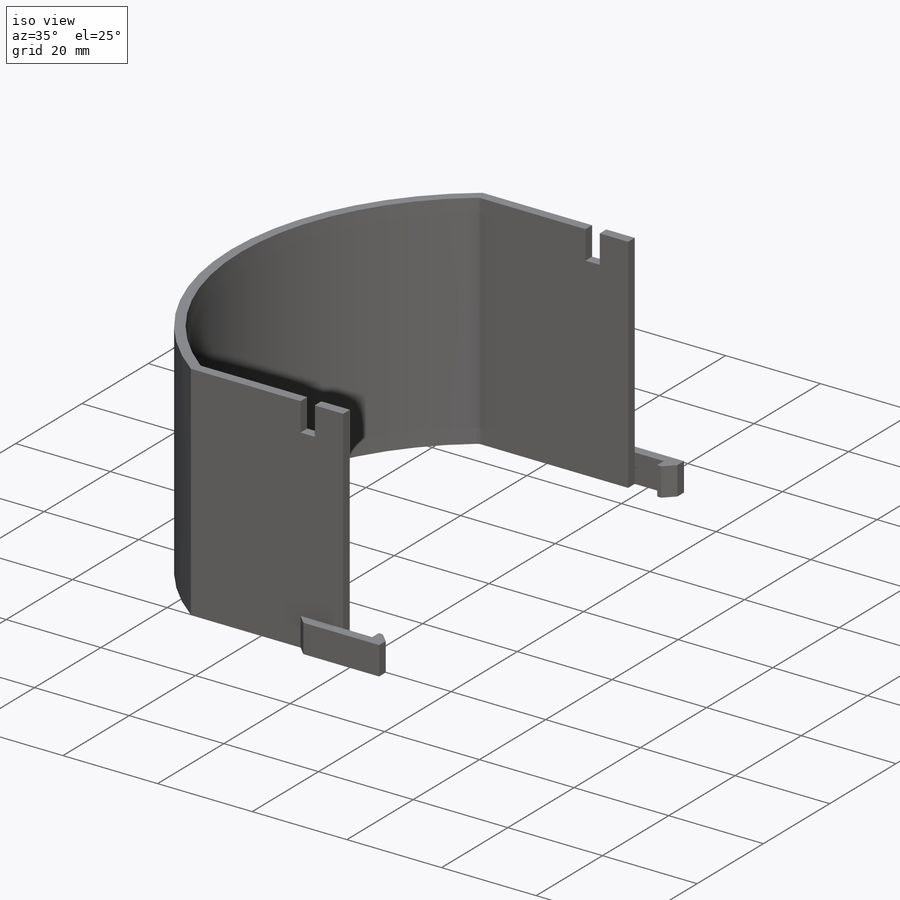
[diagram: iso view]
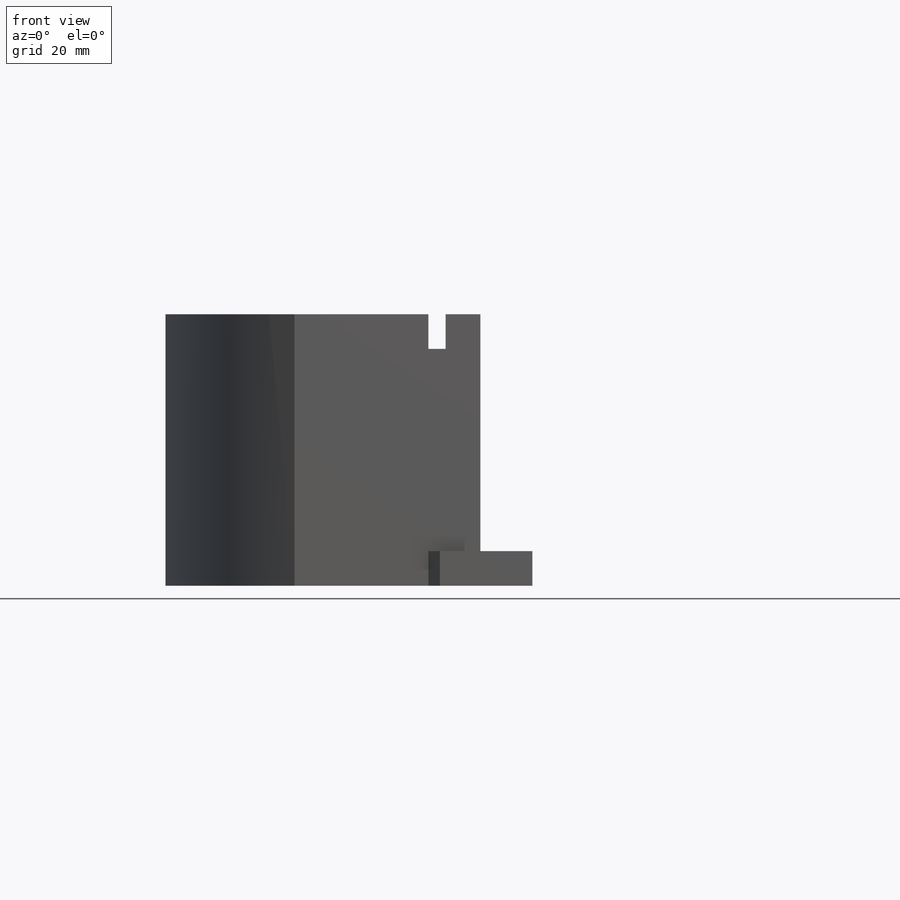
[diagram: front view]
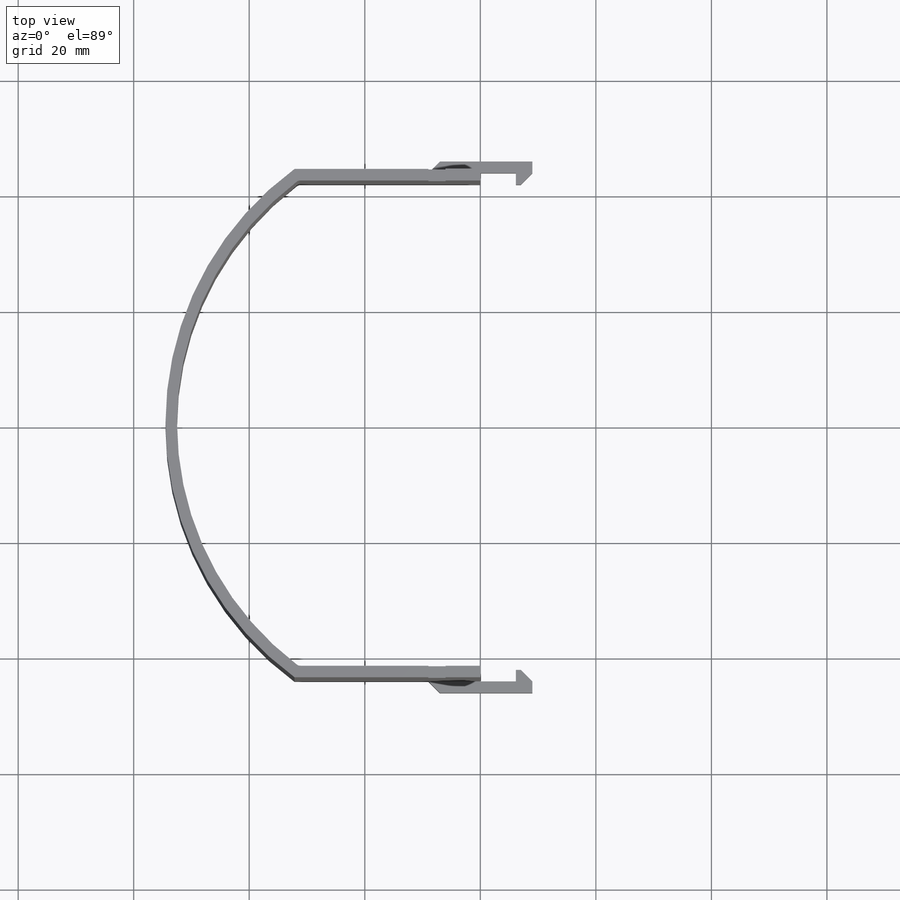
[diagram: top view]
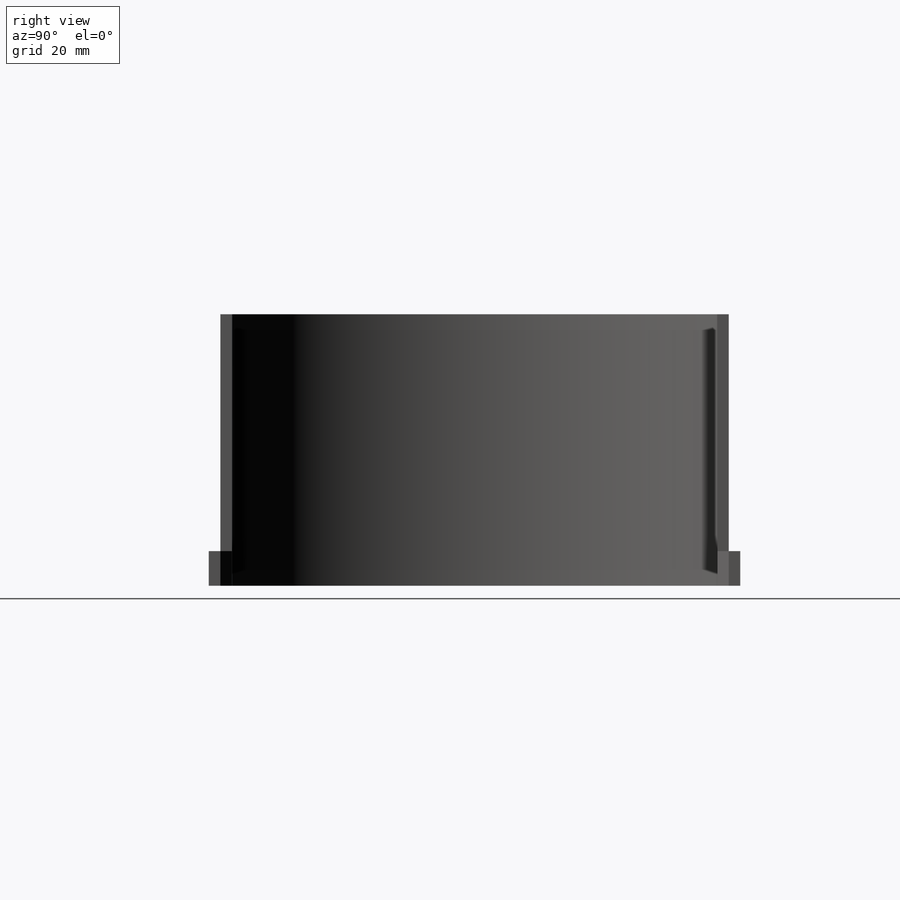
[diagram: right view]
SOLIDWORKS PART (.sldprt)
format: sldprt  version: not decoded by parser v0  size: 334,336 bytes
history: native  units: mm
features: sketch x4, extrude x2, cut_extrude x2, material x1, chamfer x1 + 1 further entry (+17 scaffold rows collapsed; 3 parser-record rows omitted)
feature tree (31):
  scaffold x17  (default folders/planes/origin — collapsed)
  material  "ABS"
  "a1_t42"
  parser-record x3  (decoder bookkeeping rows leaked as tree rows — omitted from the tree; the rows remain in map.json)
  sketch  "Sketch1"  dims[D1=0.0mm D2=0.0mm]
  extrude  "Shell Body"  Depth=47mm
  sketch  "Sketch2"
  cut_extrude  "Body Cut"  [1 undecoded]
  sketch  "Sketch3"  dims[D1=6.0mm D2=3.0mm]
  cut_extrude  "Clearance - Tabs"  [1 undecoded]
  sketch  "Sketch4"  dims[c1.D1=2.0mm c1.D2=9.0mm c1.D3=2.85mm c1.D4=6.15mm c2.D3=9.0mm]
  extrude  "Tabs"  Depth=6mm
  chamfer  "Tab Chamfer"  Distance=2mm Angle=45deg
decode coverage: 6 of 9 modeling features carry decoded parameters; 1 rows unclassified (native names shown)
note: 2 parameter values undecoded
note: suppression state not decoded; provenance and decode notes live in map.json
